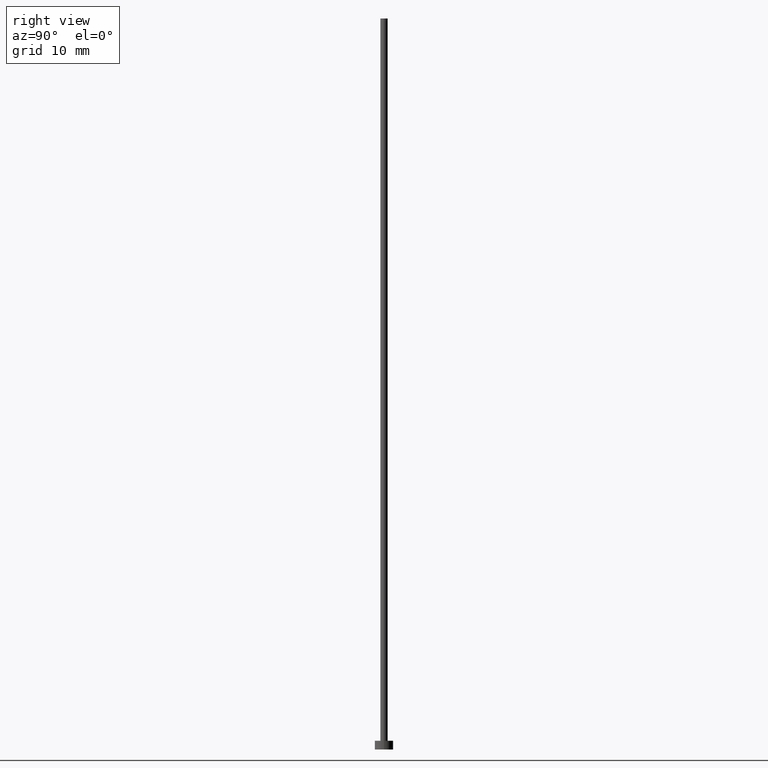
[diagram: clean part render]
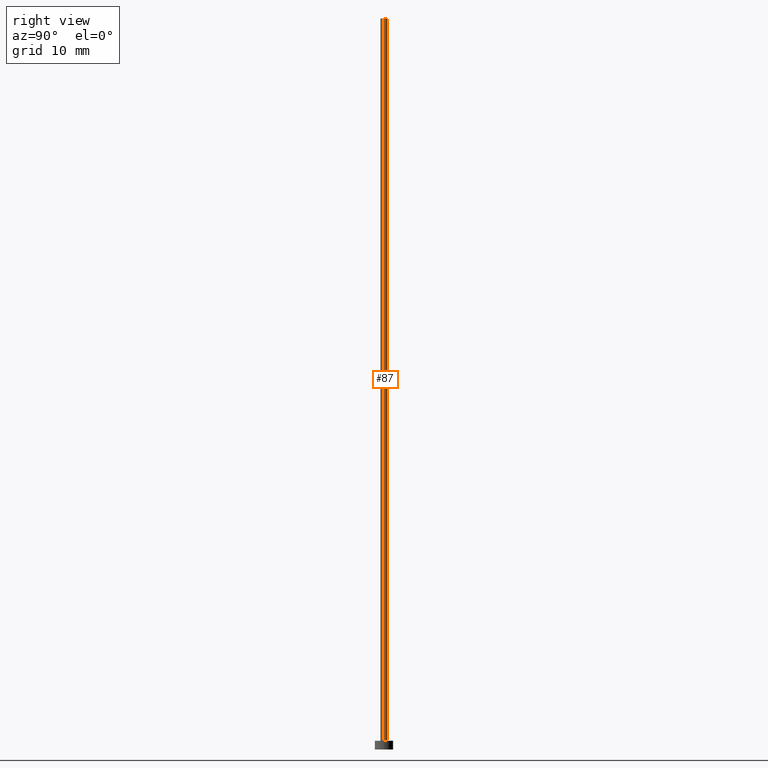
[diagram: same view with one face highlighted and labeled with its STEP entity id]
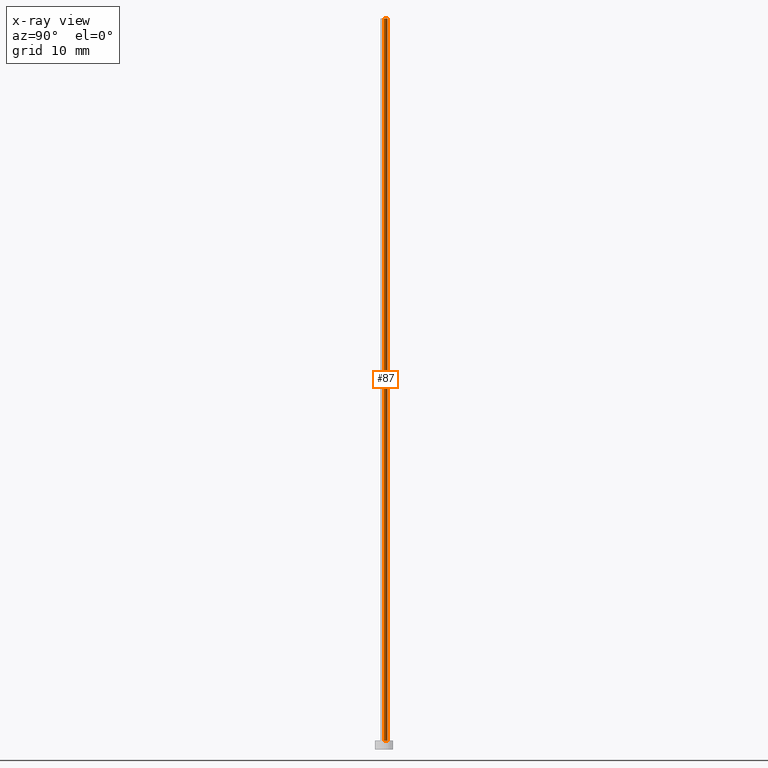
[diagram: x-ray of the same camera — body ghosted, the highlighted face saturated]
A machine part, right view. The second image highlights one B-rep face of the part: STEP entity #87.
The next image is the same camera in x-ray: the body ghosted, the highlighted face saturated — about 0% of this face is hidden behind the body in this view.
In plain terms, the highlighted cylindrical surface (edge-blend (fillet) strip) has radius 0.5 mm, axis along (-0, -0, -1).
Its self-contained STEP definition (entity closure, byte-faithful):
#11 = EDGE_CURVE ( 'NONE', #138, #176, #80, .T. ) ;
#12 = CARTESIAN_POINT ( 'NONE',  ( 0.000000000000000000, 0.000000000000000000, 1.199999999999999956 ) ) ;
#13 = DIRECTION ( 'NONE',  ( -0.000000000000000000, -0.000000000000000000, -1.000000000000000000 ) ) ;
#24 = EDGE_CURVE ( 'NONE', #138, #136, #67, .T. ) ;
#25 = FACE_OUTER_BOUND ( 'NONE', #229, .T. ) ;
#30 = VECTOR ( 'NONE', #13, 1000.000000000000000 ) ;
#39 = VECTOR ( 'NONE', #233, 1000.000000000000000 ) ;
#51 = DIRECTION ( 'NONE',  ( -1.000000000000000000, 0.000000000000000000, 0.000000000000000000 ) ) ;
#67 = CIRCLE ( 'NONE', #201, 0.5000000000000000000 ) ;
#78 = CARTESIAN_POINT ( 'NONE',  ( 0.5000000000000000000, 6.123233995736766036E-17, 100.0000000000000000 ) ) ;
#80 = LINE ( 'NONE', #238, #39 ) ;
#87 = ADVANCED_FACE ( 'NONE', ( #25 ), #105, .T. ) ;
#88 = CARTESIAN_POINT ( 'NONE',  ( 0.000000000000000000, 0.000000000000000000, 100.0000000000000000 ) ) ;
#92 = CARTESIAN_POINT ( 'NONE',  ( 0.5000000000000000000, 6.123233995736766036E-17, 1.199999999999999956 ) ) ;
#102 = EDGE_CURVE ( 'NONE', #176, #182, #162, .T. ) ;
#105 = CYLINDRICAL_SURFACE ( 'NONE', #186, 0.5000000000000000000 ) ;
#109 = CARTESIAN_POINT ( 'NONE',  ( -0.5000000000000000000, 0.000000000000000000, 1.199999999999999956 ) ) ;
#121 = ORIENTED_EDGE ( 'NONE', *, *, #255, .F. ) ;
#128 = LINE ( 'NONE', #246, #30 ) ;
#133 = DIRECTION ( 'NONE',  ( 0.000000000000000000, 0.000000000000000000, 1.000000000000000000 ) ) ;
#136 = VERTEX_POINT ( 'NONE', #170 ) ;
#138 = VERTEX_POINT ( 'NONE', #78 ) ;
#155 = ORIENTED_EDGE ( 'NONE', *, *, #24, .F. ) ;
#158 = CARTESIAN_POINT ( 'NONE',  ( 0.000000000000000000, 0.000000000000000000, 100.0000000000000000 ) ) ;
#160 = ORIENTED_EDGE ( 'NONE', *, *, #102, .T. ) ;
#161 = AXIS2_PLACEMENT_3D ( 'NONE', #12, #133, #210 ) ;
#162 = CIRCLE ( 'NONE', #161, 0.5000000000000000000 ) ;
#164 = DIRECTION ( 'NONE',  ( -0.000000000000000000, -0.000000000000000000, -1.000000000000000000 ) ) ;
#170 = CARTESIAN_POINT ( 'NONE',  ( -0.5000000000000000000, 0.000000000000000000, 100.0000000000000000 ) ) ;
#176 = VERTEX_POINT ( 'NONE', #92 ) ;
#182 = VERTEX_POINT ( 'NONE', #109 ) ;
#186 = AXIS2_PLACEMENT_3D ( 'NONE', #88, #164, #51 ) ;
#197 = DIRECTION ( 'NONE',  ( 0.000000000000000000, 0.000000000000000000, 1.000000000000000000 ) ) ;
#201 = AXIS2_PLACEMENT_3D ( 'NONE', #158, #197, #236 ) ;
#210 = DIRECTION ( 'NONE',  ( 1.000000000000000000, 0.000000000000000000, 0.000000000000000000 ) ) ;
#216 = ORIENTED_EDGE ( 'NONE', *, *, #11, .T. ) ;
#229 = EDGE_LOOP ( 'NONE', ( #155, #216, #160, #121 ) ) ;
#233 = DIRECTION ( 'NONE',  ( -0.000000000000000000, -0.000000000000000000, -1.000000000000000000 ) ) ;
#236 = DIRECTION ( 'NONE',  ( 1.000000000000000000, 0.000000000000000000, 0.000000000000000000 ) ) ;
#238 = CARTESIAN_POINT ( 'NONE',  ( 0.5000000000000000000, 6.123233995736766036E-17, 100.0000000000000000 ) ) ;
#246 = CARTESIAN_POINT ( 'NONE',  ( -0.5000000000000000000, 0.000000000000000000, 100.0000000000000000 ) ) ;
#255 = EDGE_CURVE ( 'NONE', #136, #182, #128, .T. ) ;